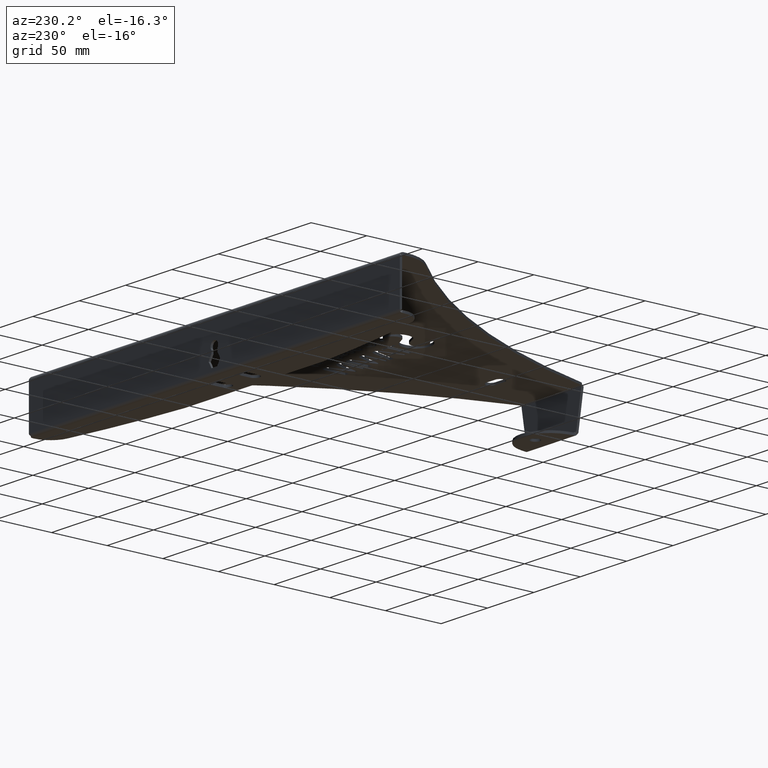
[diagram: clean part render]
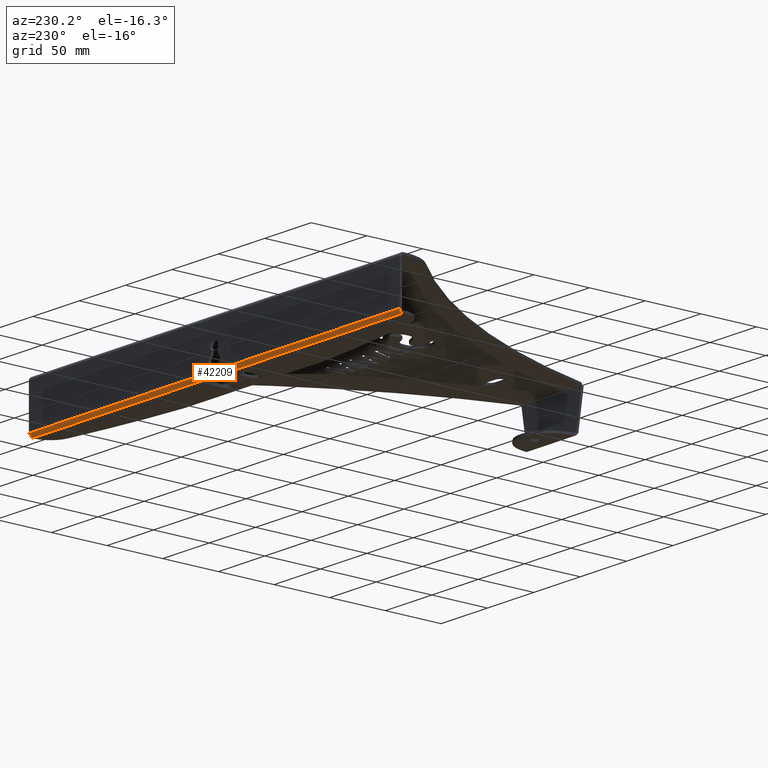
[diagram: same view with one face highlighted and labeled with its STEP entity id]
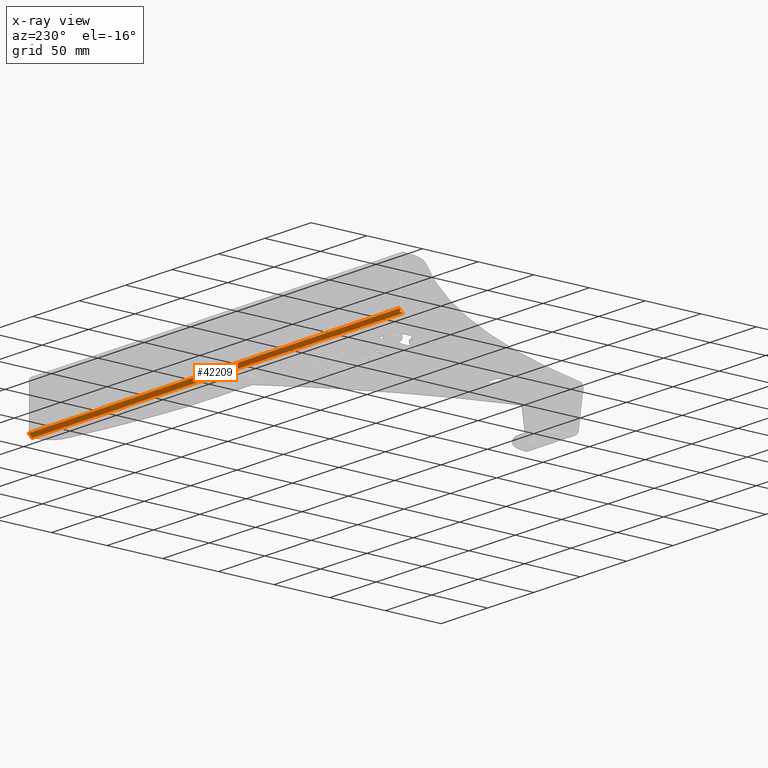
[diagram: x-ray of the same camera — body ghosted, the highlighted face saturated]
A machine part, auxiliary view. The second image highlights one B-rep face of the part: STEP entity #42209.
The next image is the same camera in x-ray: the body ghosted, the highlighted face saturated — about 0% of this face is hidden behind the body in this view.
In plain terms, the highlighted cylindrical surface (edge-blend (fillet) strip) has radius 3 mm, axis along (-1, 0, -0).
Its self-contained STEP definition (entity closure, byte-faithful):
#135 = B_SPLINE_CURVE_WITH_KNOTS ( 'NONE', 3,
 ( #20032, #3746, #32377, #28589 ),
 .UNSPECIFIED., .F., .F.,
 ( 4, 4 ),
 ( 0.000000000000000000, 1.000000000000000000 ),
 .UNSPECIFIED. ) ;
#189 = VERTEX_POINT ( 'NONE', #9247 ) ;
#710 = CARTESIAN_POINT ( 'NONE',  ( -200.0000000000049738, 145.2021037299190027, -39.70302593979018724 ) ) ;
#877 = EDGE_CURVE ( 'NONE', #40840, #43787, #36833, .T. ) ;
#2881 = CYLINDRICAL_SURFACE ( 'NONE', #9991, 3.000000000000002665 ) ;
#3746 = CARTESIAN_POINT ( 'NONE',  ( 199.7366474157838354, 145.0917359256490045, -40.07918407740725542 ) ) ;
#4090 = CARTESIAN_POINT ( 'NONE',  ( 199.2099422473612833, 144.2037939512887874, -41.19599687972664981 ) ) ;
#4505 = VECTOR ( 'NONE', #17464, 1000.000000000000000 ) ;
#5151 = DIRECTION ( 'NONE',  ( 1.000000000000000000, -1.295260195396014786E-13, 1.848449872750010840E-15 ) ) ;
#5811 = LINE ( 'NONE', #13166, #4505 ) ;
#6654 = DIRECTION ( 'NONE',  ( -1.000000000000000000, 9.912290120095773992E-15, -3.565915880948438910E-14 ) ) ;
#7848 = CARTESIAN_POINT ( 'NONE',  ( -199.2099422473716288, 144.6610443732816123, -40.73874645777335957 ) ) ;
#8160 = B_SPLINE_CURVE_WITH_KNOTS ( 'NONE', 3,
 ( #37338, #45549, #50425, #45731 ),
 .UNSPECIFIED., .F., .F.,
 ( 4, 4 ),
 ( 0.000000000000000000, 1.000000000000000000 ),
 .UNSPECIFIED. ) ;
#8694 = ORIENTED_EDGE ( 'NONE', *, *, #24482, .F. ) ;
#9247 = CARTESIAN_POINT ( 'NONE',  ( -200.0000000000056843, 142.3234548399429684, -41.85840734643598182 ) ) ;
#9432 = EDGE_CURVE ( 'NONE', #42615, #51496, #135, .T. ) ;
#9991 = AXIS2_PLACEMENT_3D ( 'NONE', #44673, #48656, #24099 ) ;
#10108 = AXIS2_PLACEMENT_3D ( 'NONE', #29653, #5151, #29468 ) ;
#10812 = VECTOR ( 'NONE', #35425, 1000.000000000000000 ) ;
#10855 = CIRCLE ( 'NONE', #47005, 3.000000000000002665 ) ;
#11258 = CARTESIAN_POINT ( 'NONE',  ( 199.9999999999944009, 142.3234548398915535, -38.85840734643594629 ) ) ;
#11886 = CARTESIAN_POINT ( 'NONE',  ( -200.0000000000046043, 145.3234548399429684, -38.85840734643600314 ) ) ;
#12100 = ORIENTED_EDGE ( 'NONE', *, *, #44623, .T. ) ;
#12146 = B_SPLINE_CURVE_WITH_KNOTS ( 'NONE', 3,
 ( #14326, #46698, #30405, #14692 ),
 .UNSPECIFIED., .F., .F.,
 ( 4, 4 ),
 ( 0.000000000000000000, 1.000000000000000000 ),
 .UNSPECIFIED. ) ;
#12233 = CARTESIAN_POINT ( 'NONE',  ( -199.4732948315827912, 144.9067516078591780, -40.43328950250877085 ) ) ;
#12317 = EDGE_CURVE ( 'NONE', #27808, #189, #38940, .T. ) ;
#12489 = AXIS2_PLACEMENT_3D ( 'NONE', #18551, #47182, #34289 ) ;
#13027 = VERTEX_POINT ( 'NONE', #11886 ) ;
#13107 = ORIENTED_EDGE ( 'NONE', *, *, #50318, .T. ) ;
#13166 = CARTESIAN_POINT ( 'NONE',  ( 1.870261961401864091E-11, 145.3234548399172752, -38.85840734643597472 ) ) ;
#13575 = CARTESIAN_POINT ( 'NONE',  ( 199.1222202092892530, 144.4087220330847003, -41.03115430076370984 ) ) ;
#13893 = CARTESIAN_POINT ( 'NONE',  ( 199.9999999999951115, 145.2021037298459305, -39.70302593986409079 ) ) ;
#14326 = CARTESIAN_POINT ( 'NONE',  ( -199.2099422473717993, 144.2037939513999447, -41.19599687967843948 ) ) ;
#14455 = ORIENTED_EDGE ( 'NONE', *, *, #9432, .T. ) ;
#14692 = CARTESIAN_POINT ( 'NONE',  ( -199.2099422473716288, 144.6610443732816123, -40.73874645777335957 ) ) ;
#15905 = ORIENTED_EDGE ( 'NONE', *, *, #27648, .T. ) ;
#16167 = CARTESIAN_POINT ( 'NONE',  ( -199.7366474157938967, 145.0917359257316548, -40.07918407733629351 ) ) ;
#16594 = B_SPLINE_CURVE_WITH_KNOTS ( 'NONE', 3,
 ( #33979, #38081, #13575, #41089 ),
 .UNSPECIFIED., .F., .F.,
 ( 4, 4 ),
 ( 0.000000000000000000, 1.000000000000000000 ),
 .UNSPECIFIED. ) ;
#16714 = AXIS2_PLACEMENT_3D ( 'NONE', #27210, #39895, #31667 ) ;
#17464 = DIRECTION ( 'NONE',  ( -1.000000000000000000, 1.285083151003618696E-13, -8.673617379884010820E-17 ) ) ;
#18551 = CARTESIAN_POINT ( 'NONE',  ( -200.0000000000055707, 142.3234548399429684, -38.85840734643597472 ) ) ;
#18651 = ORIENTED_EDGE ( 'NONE', *, *, #41269, .T. ) ;
#19902 = EDGE_CURVE ( 'NONE', #50066, #13027, #49964, .T. ) ;
#19908 = B_SPLINE_CURVE_WITH_KNOTS ( 'NONE', 3,
 ( #32277, #12233, #16167, #52868 ),
 .UNSPECIFIED., .F., .F.,
 ( 4, 4 ),
 ( 0.000000000000000000, 1.000000000000000000 ),
 .UNSPECIFIED. ) ;
#20032 = CARTESIAN_POINT ( 'NONE',  ( 199.9999999999951115, 145.2021037298459305, -39.70302593986409079 ) ) ;
#21452 = VERTEX_POINT ( 'NONE', #7848 ) ;
#23074 = ORIENTED_EDGE ( 'NONE', *, *, #35380, .T. ) ;
#24099 = DIRECTION ( 'NONE',  ( -1.295260195396014786E-13, -1.000000000000000000, 0.000000000000000000 ) ) ;
#24482 = EDGE_CURVE ( 'NONE', #40531, #13027, #5811, .T. ) ;
#25241 = CARTESIAN_POINT ( 'NONE',  ( 199.2099422473613686, 144.6610443731823068, -40.73874645783315884 ) ) ;
#25735 = CARTESIAN_POINT ( 'NONE',  ( 199.2099422473612833, 144.2037939512887874, -41.19599687972664981 ) ) ;
#26102 = CARTESIAN_POINT ( 'NONE',  ( 199.9999999999945430, 143.1680734333193072, -41.73705623639042273 ) ) ;
#27210 = CARTESIAN_POINT ( 'NONE',  ( 199.9999999999947420, 142.3234548398915535, -38.85840734643594629 ) ) ;
#27376 = DIRECTION ( 'NONE',  ( -3.700743415417185102E-14, 0.000000000000000000, 1.000000000000000000 ) ) ;
#27648 = EDGE_CURVE ( 'NONE', #51496, #40840, #16594, .T. ) ;
#27808 = VERTEX_POINT ( 'NONE', #35922 ) ;
#28103 = CARTESIAN_POINT ( 'NONE',  ( 199.9999999999951399, 145.3234548398915535, -38.85840734643598182 ) ) ;
#28256 = EDGE_CURVE ( 'NONE', #34758, #21452, #12146, .T. ) ;
#28589 = CARTESIAN_POINT ( 'NONE',  ( 199.2099422473613686, 144.6610443731823068, -40.73874645783315884 ) ) ;
#29468 = DIRECTION ( 'NONE',  ( -1.295260195396014786E-13, -1.000000000000000000, 0.000000000000000000 ) ) ;
#29653 = CARTESIAN_POINT ( 'NONE',  ( -200.0000000000052296, 142.3234548399429684, -38.85840734643597472 ) ) ;
#29957 = ORIENTED_EDGE ( 'NONE', *, *, #28256, .T. ) ;
#30032 = EDGE_CURVE ( 'NONE', #43787, #27808, #10855, .T. ) ;
#30405 = CARTESIAN_POINT ( 'NONE',  ( -199.1222202092997691, 144.5551564829911229, -40.87038357714079950 ) ) ;
#31341 = CARTESIAN_POINT ( 'NONE',  ( -200.0000000000054570, 143.1680734334448175, -41.73705623636871564 ) ) ;
#31651 = CARTESIAN_POINT ( 'NONE',  ( 1.831473842475312240E-11, 142.3234548399172752, -41.85840734643594629 ) ) ;
#31667 = DIRECTION ( 'NONE',  ( -1.295260195396014786E-13, -1.000000000000000000, 0.000000000000000000 ) ) ;
#32277 = CARTESIAN_POINT ( 'NONE',  ( -199.2099422473716288, 144.6610443732816123, -40.73874645777335957 ) ) ;
#32377 = CARTESIAN_POINT ( 'NONE',  ( 199.4732948315726162, 144.9067516077675748, -40.43328950257490106 ) ) ;
#32901 = CARTESIAN_POINT ( 'NONE',  ( 199.9999999999945430, 143.1680734333193072, -41.73705623639042273 ) ) ;
#33561 = EDGE_LOOP ( 'NONE', ( #12100, #35585, #8694, #13107, #14455, #15905, #43198, #49891, #46154, #23074, #18651, #29957 ) ) ;
#33979 = CARTESIAN_POINT ( 'NONE',  ( 199.2099422473613686, 144.6610443731823068, -40.73874645783315884 ) ) ;
#34289 = DIRECTION ( 'NONE',  ( -3.700743415417176267E-14, 0.000000000000000000, 1.000000000000000000 ) ) ;
#34758 = VERTEX_POINT ( 'NONE', #37397 ) ;
#35380 = EDGE_CURVE ( 'NONE', #189, #45214, #36849, .T. ) ;
#35425 = DIRECTION ( 'NONE',  ( -1.000000000000000000, 1.285083151003618696E-13, -8.673617379884004657E-17 ) ) ;
#35585 = ORIENTED_EDGE ( 'NONE', *, *, #19902, .T. ) ;
#35922 = CARTESIAN_POINT ( 'NONE',  ( 199.9999999999943441, 142.3234548398915251, -41.85840734643592498 ) ) ;
#36693 = CIRCLE ( 'NONE', #16714, 3.000000000000002665 ) ;
#36833 = B_SPLINE_CURVE_WITH_KNOTS ( 'NONE', 3,
 ( #4090, #49398, #37188, #32901 ),
 .UNSPECIFIED., .F., .F.,
 ( 4, 4 ),
 ( 0.000000000000000000, 1.000000000000000000 ),
 .UNSPECIFIED. ) ;
#36849 = CIRCLE ( 'NONE', #12489, 3.000000000000009770 ) ;
#37188 = CARTESIAN_POINT ( 'NONE',  ( 199.7366474157834659, 143.5442315708625927, -41.62668843219349668 ) ) ;
#37338 = CARTESIAN_POINT ( 'NONE',  ( -200.0000000000054570, 143.1680734334448175, -41.73705623636871564 ) ) ;
#37397 = CARTESIAN_POINT ( 'NONE',  ( -199.2099422473717993, 144.2037939513999447, -41.19599687967843948 ) ) ;
#38081 = CARTESIAN_POINT ( 'NONE',  ( 199.1222202092892815, 144.5551564828883500, -40.87038357719801240 ) ) ;
#38940 = LINE ( 'NONE', #31651, #10812 ) ;
#39895 = DIRECTION ( 'NONE',  ( -1.000000000000000000, 1.295260195396014533E-13, -1.848449872919661689E-15 ) ) ;
#40531 = VERTEX_POINT ( 'NONE', #28103 ) ;
#40840 = VERTEX_POINT ( 'NONE', #25735 ) ;
#41089 = CARTESIAN_POINT ( 'NONE',  ( 199.2099422473612833, 144.2037939512887874, -41.19599687972664981 ) ) ;
#41269 = EDGE_CURVE ( 'NONE', #45214, #34758, #8160, .T. ) ;
#42209 = ADVANCED_FACE ( 'NONE', ( #42538 ), #2881, .T. ) ;
#42538 = FACE_OUTER_BOUND ( 'NONE', #33561, .T. ) ;
#42615 = VERTEX_POINT ( 'NONE', #13893 ) ;
#43198 = ORIENTED_EDGE ( 'NONE', *, *, #877, .T. ) ;
#43787 = VERTEX_POINT ( 'NONE', #26102 ) ;
#44623 = EDGE_CURVE ( 'NONE', #21452, #50066, #19908, .T. ) ;
#44673 = CARTESIAN_POINT ( 'NONE',  ( 400.0173366297985922, 142.3234548398658603, -38.85840734643592498 ) ) ;
#45214 = VERTEX_POINT ( 'NONE', #31341 ) ;
#45549 = CARTESIAN_POINT ( 'NONE',  ( -199.7366474157942093, 143.5442315709851471, -41.62668843216212622 ) ) ;
#45731 = CARTESIAN_POINT ( 'NONE',  ( -199.2099422473717993, 144.2037939513999447, -41.19599687967843948 ) ) ;
#46154 = ORIENTED_EDGE ( 'NONE', *, *, #12317, .T. ) ;
#46698 = CARTESIAN_POINT ( 'NONE',  ( -199.1222202092998259, 144.4087220331916512, -41.03115430071020597 ) ) ;
#47005 = AXIS2_PLACEMENT_3D ( 'NONE', #11258, #6654, #27376 ) ;
#47182 = DIRECTION ( 'NONE',  ( 1.000000000000000000, -9.912290120965696666E-15, 3.565915880924319961E-14 ) ) ;
#48656 = DIRECTION ( 'NONE',  ( -1.000000000000000000, 1.285083151003618948E-13, -8.673617379884010820E-17 ) ) ;
#49398 = CARTESIAN_POINT ( 'NONE',  ( 199.4732948315723604, 143.8983369960303946, -41.44170411431203149 ) ) ;
#49891 = ORIENTED_EDGE ( 'NONE', *, *, #30032, .T. ) ;
#49964 = CIRCLE ( 'NONE', #10108, 3.000000000000002665 ) ;
#50066 = VERTEX_POINT ( 'NONE', #710 ) ;
#50318 = EDGE_CURVE ( 'NONE', #40531, #42615, #36693, .T. ) ;
#50425 = CARTESIAN_POINT ( 'NONE',  ( -199.4732948315829901, 143.8983369961480037, -41.44170411427158029 ) ) ;
#51496 = VERTEX_POINT ( 'NONE', #25241 ) ;
#52868 = CARTESIAN_POINT ( 'NONE',  ( -200.0000000000049738, 145.2021037299190027, -39.70302593979018724 ) ) ;